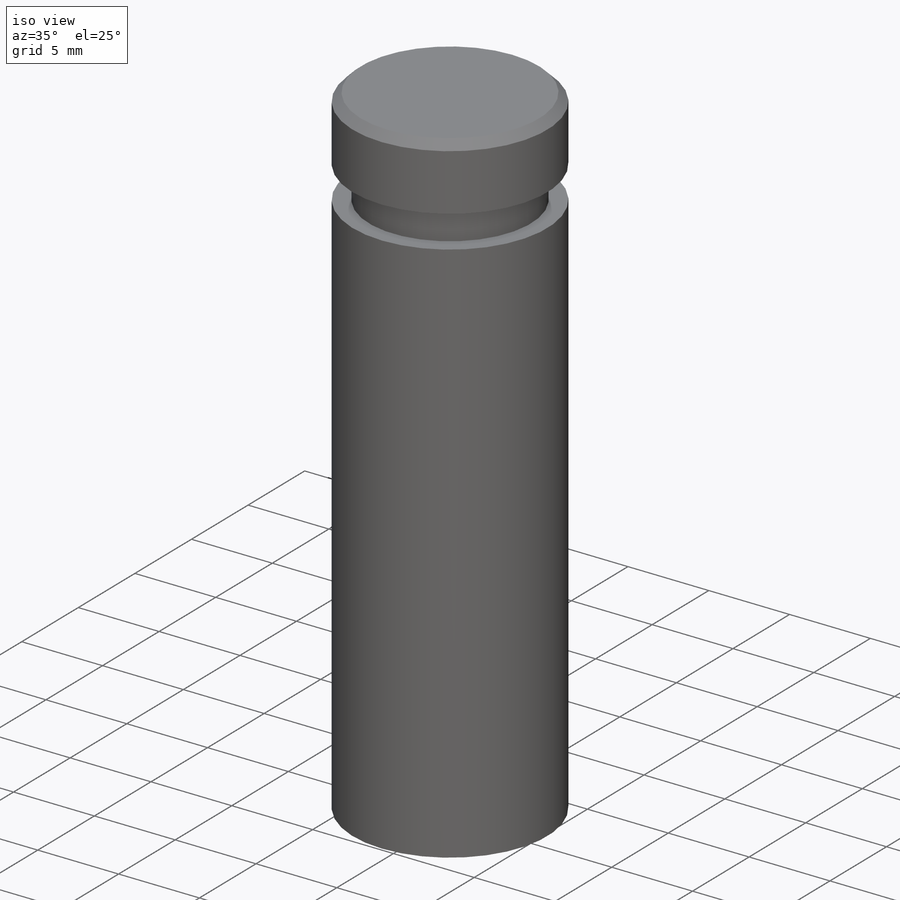
[diagram: iso view]
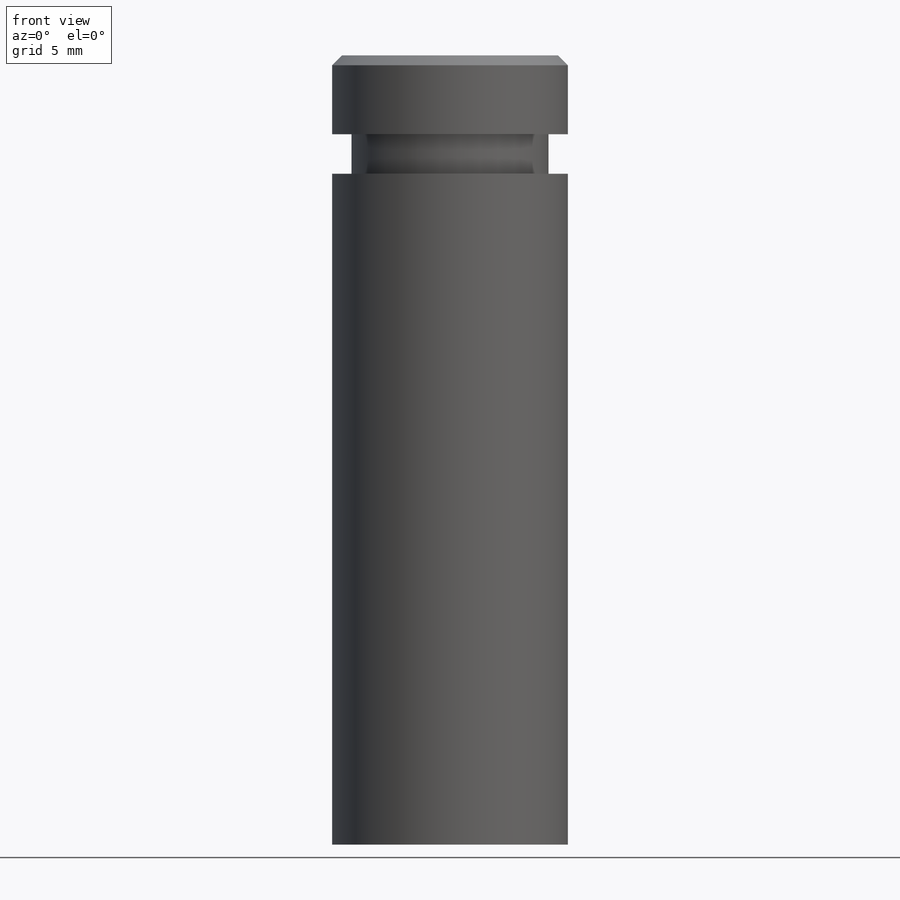
[diagram: front view]
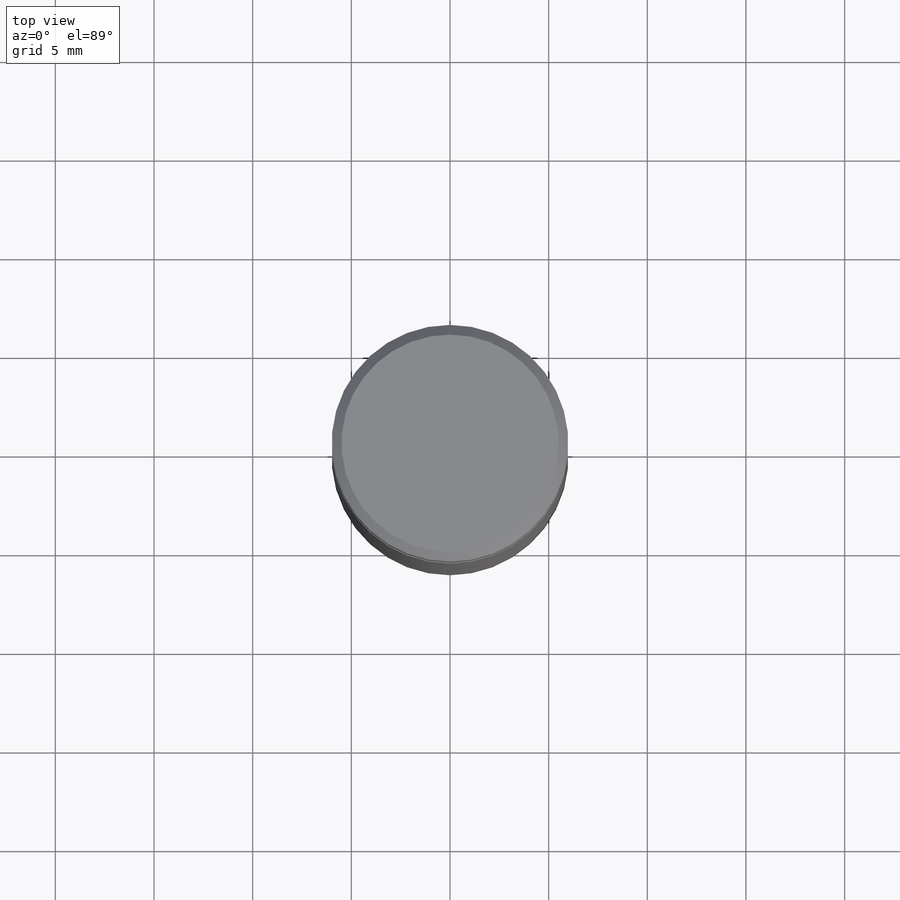
[diagram: top view]
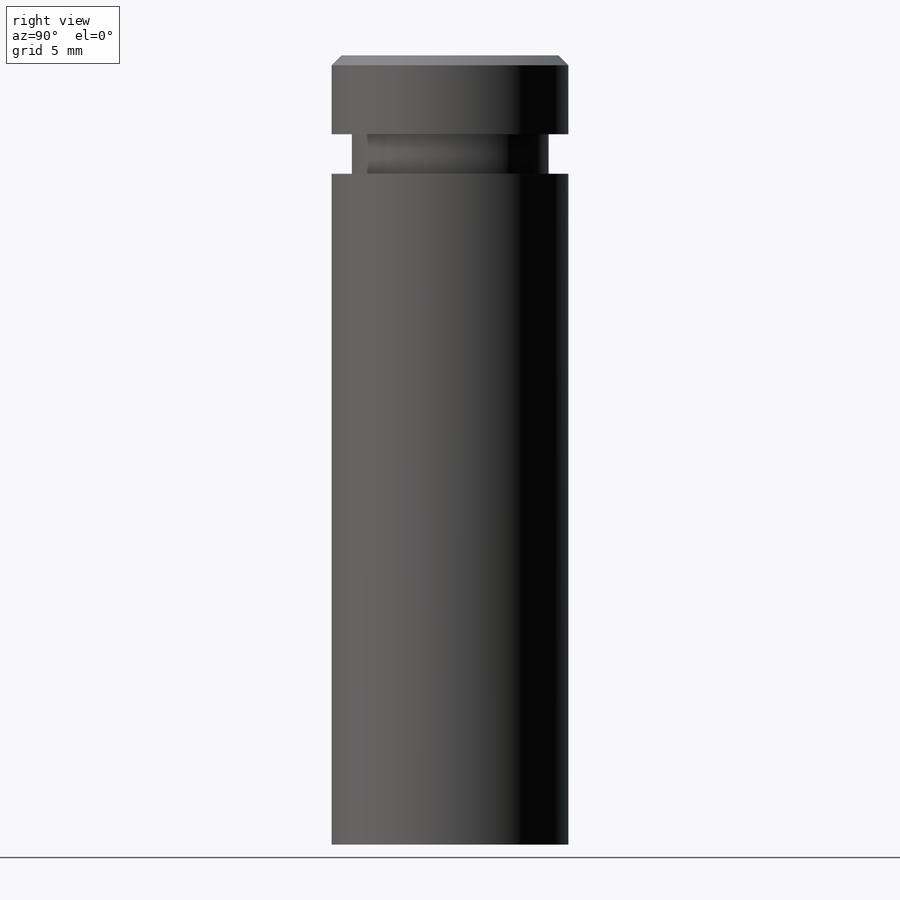
[diagram: right view]
SOLIDWORKS PART (.sldprt)
format: sldprt  version: not decoded by parser v0  size: 88,064 bytes
history: native  units: mm
features: plane x3, sketch x3, material x1, extrude x1, cut_extrude x1, chamfer x1, cut_revolve x1 (+12 scaffold rows collapsed)
feature tree (23):
  scaffold x12  (default folders/planes/origin — collapsed)
  material  "Material <não especificado>"
  plane  "Plano frontal"
  plane  "Plano superior"
  plane  "Plano direito"
  sketch  "Esboço1"  dims[D1=12.0mm]
  extrude  "Extrusão1"  Depth=40mm
  sketch  "Esboço2"  dims[D1=10.0mm]
  cut_extrude  "Corte-extrusão1"  Depth=30mm
  chamfer  "Chanfro1"  Distance=0.5mm Angle=45deg
  sketch  "Esboço3"  dims[D1=2.0mm D2=4.0mm D3=3.0mm D4=8.0mm]
  cut_revolve  "Corte-Revolução3"  Angle=360deg
decode coverage: 7 of 7 modeling features carry decoded parameters
note: suppression state not decoded; provenance and decode notes live in map.json
